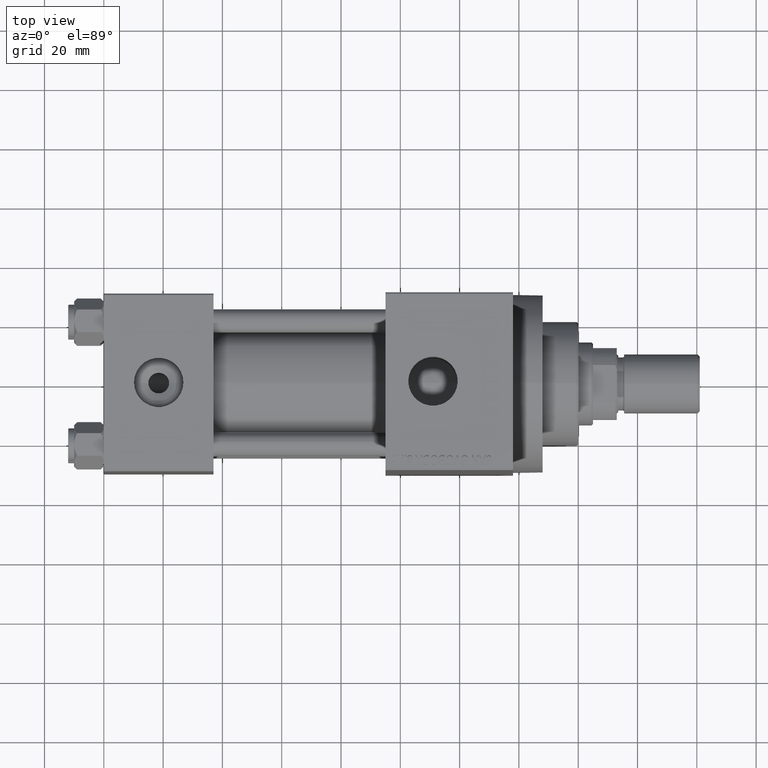
[diagram: clean part render]
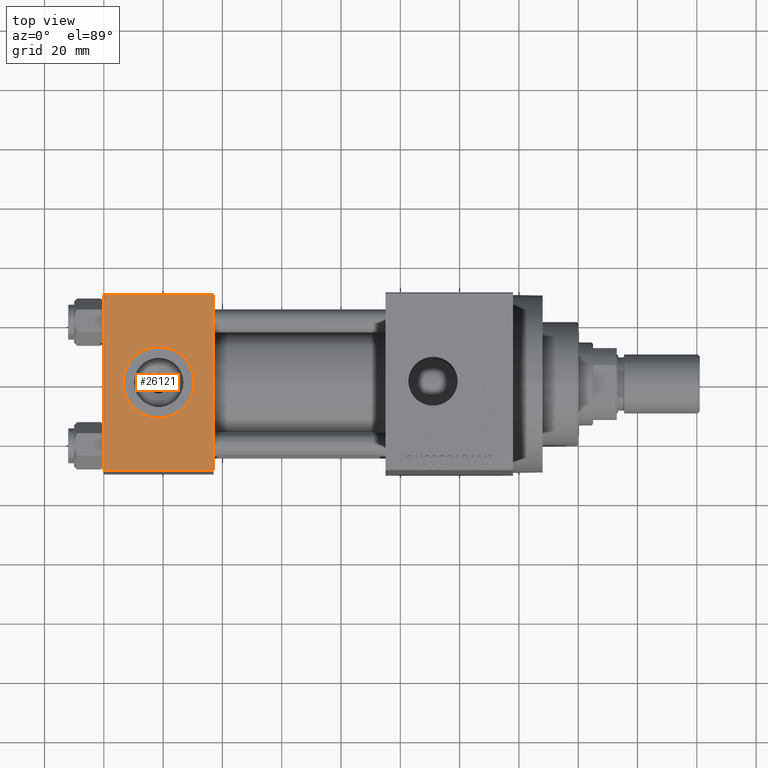
[diagram: same view with one face highlighted and labeled with its STEP entity id]
A machine part, top view. The second image highlights one B-rep face of the part: STEP entity #26121.
In plain terms, the highlighted planar face has unit normal (0, 0, -1).
Its self-contained STEP definition (entity closure, byte-faithful):
#425 = ORIENTED_EDGE ( 'NONE', *, *, #13744, .F. ) ;
#1545 = CARTESIAN_POINT ( 'NONE',  ( 37.00000000000000000, -29.49999999999998579, 29.99999999999999289 ) ) ;
#2778 = EDGE_LOOP ( 'NONE', ( #40702, #31310, #39478, #31302 ) ) ;
#3007 = LINE ( 'NONE', #47611, #22038 ) ;
#4168 = CARTESIAN_POINT ( 'NONE',  ( 37.00000000000000000, 29.49999999999999289, 30.00000000000000000 ) ) ;
#5750 = CARTESIAN_POINT ( 'NONE',  ( 30.50000000000000000, -3.469446951953614978E-15, 29.99999999999999645 ) ) ;
#6319 = DIRECTION ( 'NONE',  ( 1.000000000000000000, 0.000000000000000000, 0.000000000000000000 ) ) ;
#6392 = FACE_OUTER_BOUND ( 'NONE', #2778, .T. ) ;
#6639 = CARTESIAN_POINT ( 'NONE',  ( 37.00000000000000000, 29.99999999999999289, 30.00000000000000000 ) ) ;
#7354 = DIRECTION ( 'NONE',  ( 0.000000000000000000, 1.156482317317871725E-16, -1.000000000000000000 ) ) ;
#8842 = LINE ( 'NONE', #33705, #33368 ) ;
#9344 = CARTESIAN_POINT ( 'NONE',  ( 18.50000000000000000, -3.469446951953614978E-15, 29.99999999999999645 ) ) ;
#10155 = VERTEX_POINT ( 'NONE', #5750 ) ;
#10827 = VERTEX_POINT ( 'NONE', #1545 ) ;
#13744 = EDGE_CURVE ( 'NONE', #36183, #10155, #27863, .T. ) ;
#13990 = AXIS2_PLACEMENT_3D ( 'NONE', #46357, #17646, #6319 ) ;
#15886 = VECTOR ( 'NONE', #44487, 1000.000000000000000 ) ;
#16019 = CARTESIAN_POINT ( 'NONE',  ( 6.499999999999997335, -1.999870792976790833E-15, 29.99999999999999645 ) ) ;
#17646 = DIRECTION ( 'NONE',  ( 0.000000000000000000, 0.000000000000000000, 1.000000000000000000 ) ) ;
#18667 = VECTOR ( 'NONE', #43801, 1000.000000000000000 ) ;
#20757 = VERTEX_POINT ( 'NONE', #26048 ) ;
#22038 = VECTOR ( 'NONE', #35808, 1000.000000000000000 ) ;
#22079 = LINE ( 'NONE', #47657, #18667 ) ;
#22532 = EDGE_LOOP ( 'NONE', ( #30158, #425 ) ) ;
#24349 = AXIS2_PLACEMENT_3D ( 'NONE', #9344, #35630, #42158 ) ;
#25688 = VERTEX_POINT ( 'NONE', #37680 ) ;
#26048 = CARTESIAN_POINT ( 'NONE',  ( 0.000000000000000000, -29.49999999999998579, 29.99999999999999289 ) ) ;
#26121 = ADVANCED_FACE ( 'NONE', ( #39429, #6392 ), #39905, .F. ) ;
#27548 = EDGE_CURVE ( 'NONE', #10155, #36183, #35899, .T. ) ;
#27863 = CIRCLE ( 'NONE', #13990, 12.00000000000000000 ) ;
#27908 = EDGE_CURVE ( 'NONE', #33153, #10827, #3007, .T. ) ;
#29520 = CARTESIAN_POINT ( 'NONE',  ( 0.000000000000000000, 29.49999999999999289, 30.00000000000000000 ) ) ;
#30158 = ORIENTED_EDGE ( 'NONE', *, *, #27548, .F. ) ;
#31302 = ORIENTED_EDGE ( 'NONE', *, *, #43878, .T. ) ;
#31310 = ORIENTED_EDGE ( 'NONE', *, *, #31872, .T. ) ;
#31872 = EDGE_CURVE ( 'NONE', #20757, #10827, #22079, .T. ) ;
#31943 = LINE ( 'NONE', #29520, #15886 ) ;
#32838 = EDGE_CURVE ( 'NONE', #25688, #20757, #8842, .T. ) ;
#33150 = DIRECTION ( 'NONE',  ( 0.000000000000000000, 1.000000000000000000, 1.156482317317871725E-16 ) ) ;
#33153 = VERTEX_POINT ( 'NONE', #4168 ) ;
#33368 = VECTOR ( 'NONE', #37327, 1000.000000000000000 ) ;
#33705 = CARTESIAN_POINT ( 'NONE',  ( 0.000000000000000000, 29.99999999999999289, 30.00000000000000000 ) ) ;
#35630 = DIRECTION ( 'NONE',  ( 0.000000000000000000, 0.000000000000000000, 1.000000000000000000 ) ) ;
#35808 = DIRECTION ( 'NONE',  ( 0.000000000000000000, -1.000000000000000000, -1.156482317317871725E-16 ) ) ;
#35899 = CIRCLE ( 'NONE', #24349, 12.00000000000000000 ) ;
#36183 = VERTEX_POINT ( 'NONE', #16019 ) ;
#37327 = DIRECTION ( 'NONE',  ( 0.000000000000000000, -1.000000000000000000, -1.156482317317871725E-16 ) ) ;
#37680 = CARTESIAN_POINT ( 'NONE',  ( 0.000000000000000000, 29.49999999999999289, 30.00000000000000000 ) ) ;
#39429 = FACE_BOUND ( 'NONE', #22532, .T. ) ;
#39478 = ORIENTED_EDGE ( 'NONE', *, *, #27908, .F. ) ;
#39905 = PLANE ( 'NONE',  #43529 ) ;
#40702 = ORIENTED_EDGE ( 'NONE', *, *, #32838, .T. ) ;
#42158 = DIRECTION ( 'NONE',  ( 1.000000000000000000, 0.000000000000000000, 0.000000000000000000 ) ) ;
#43529 = AXIS2_PLACEMENT_3D ( 'NONE', #6639, #7354, #33150 ) ;
#43801 = DIRECTION ( 'NONE',  ( 1.000000000000000000, 0.000000000000000000, 0.000000000000000000 ) ) ;
#43878 = EDGE_CURVE ( 'NONE', #33153, #25688, #31943, .T. ) ;
#44487 = DIRECTION ( 'NONE',  ( -1.000000000000000000, 0.000000000000000000, 0.000000000000000000 ) ) ;
#46357 = CARTESIAN_POINT ( 'NONE',  ( 18.50000000000000000, -3.469446951953614978E-15, 29.99999999999999645 ) ) ;
#47611 = CARTESIAN_POINT ( 'NONE',  ( 37.00000000000000000, 29.99999999999999289, 30.00000000000000000 ) ) ;
#47657 = CARTESIAN_POINT ( 'NONE',  ( 37.00000000000000000, -29.50000000000000000, 29.99999999999999289 ) ) ;